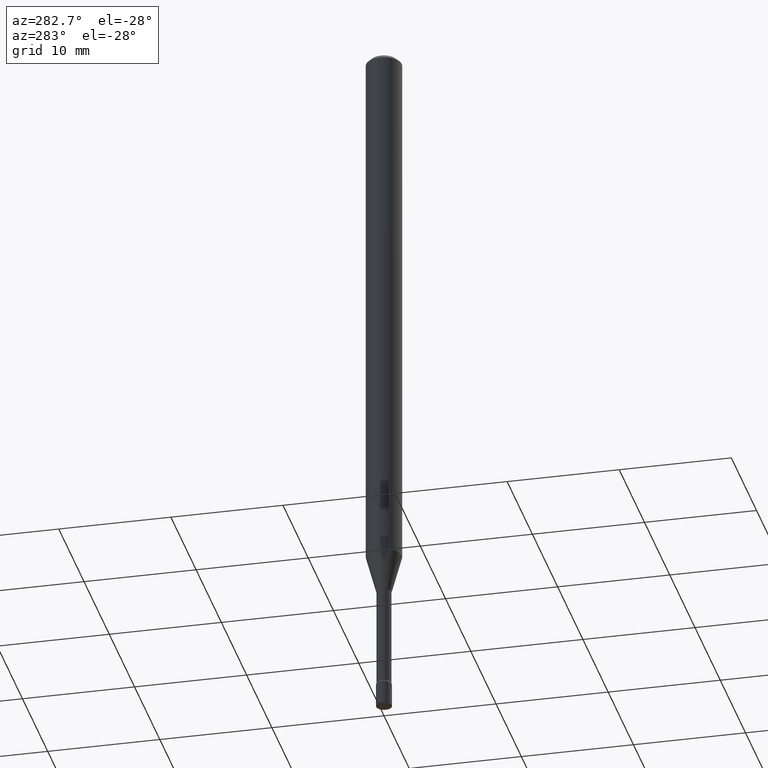
[diagram: clean part render]
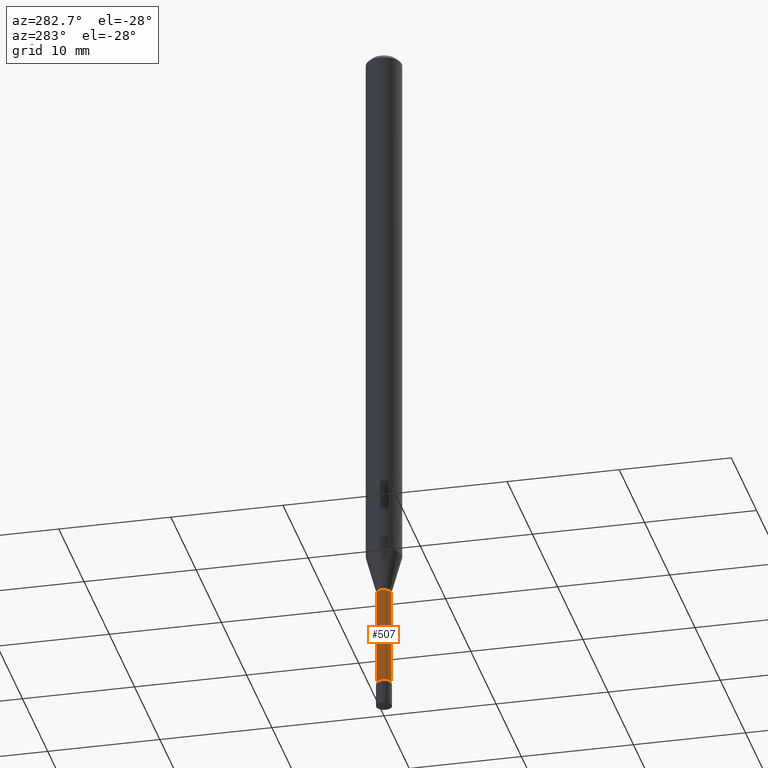
[diagram: same view with one face highlighted and labeled with its STEP entity id]
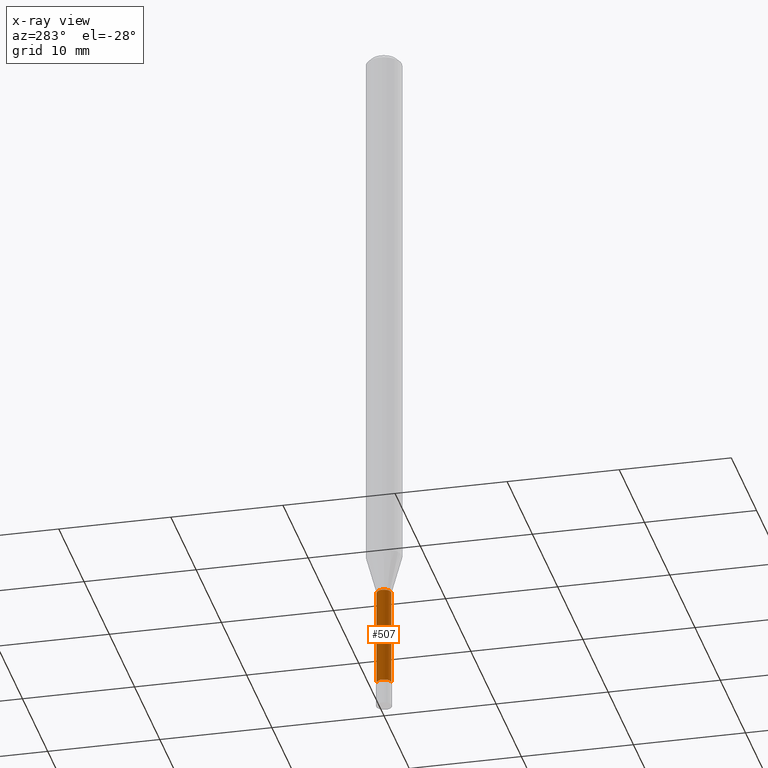
[diagram: x-ray of the same camera — body ghosted, the highlighted face saturated]
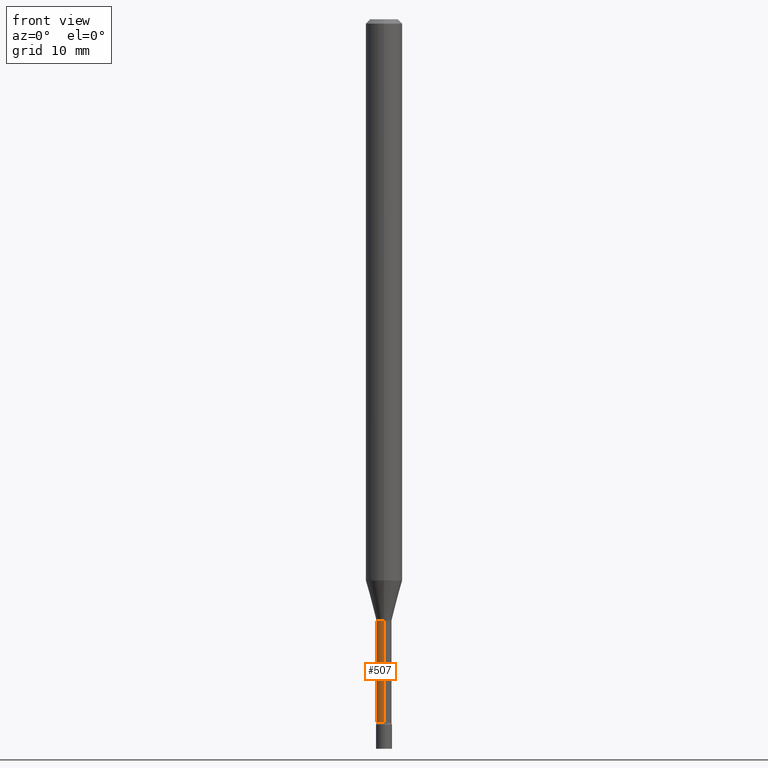
[diagram: same view with one face highlighted and labeled with its STEP entity id]
A machine part, auxiliary view. The second image highlights one B-rep face of the part: STEP entity #507.
The next image is the same camera in x-ray: the body ghosted, the highlighted face saturated — about 0% of this face is hidden behind the body in this view.
A second angle (front view) of the same face is appended — the face is thin or edge-on in the first view.
In plain terms, the highlighted cylindrical surface (edge-blend (fillet) strip) has radius 0.6566 mm, axis along (-0, 0, 1).
Its self-contained STEP definition (entity closure, byte-faithful):
#22 = VERTEX_POINT ( 'NONE', #192 ) ;
#26 = AXIS2_PLACEMENT_3D ( 'NONE', #399, #406, #243 ) ;
#35 = EDGE_CURVE ( 'NONE', #137, #108, #146, .T. ) ;
#38 = CARTESIAN_POINT ( 'NONE',  ( 0.000000000000000000, 0.000000000000000000, 0.000000000000000000 ) ) ;
#59 = CIRCLE ( 'NONE', #26, 0.02585000000000002227 ) ;
#99 = ORIENTED_EDGE ( 'NONE', *, *, #446, .F. ) ;
#105 = DIRECTION ( 'NONE',  ( -2.445418385667774846E-29, 3.491553543893765226E-15, 1.000000000000000000 ) ) ;
#108 = VERTEX_POINT ( 'NONE', #140 ) ;
#116 = CARTESIAN_POINT ( 'NONE',  ( -1.805095852181900511E-16, -0.02585000000000001186, 9.025665910965387354E-17 ) ) ;
#136 = CARTESIAN_POINT ( 'NONE',  ( -1.805095852181311823E-16, -0.02585000000000843567, -2.410160592130893509 ) ) ;
#137 = VERTEX_POINT ( 'NONE', #136 ) ;
#140 = CARTESIAN_POINT ( 'NONE',  ( -1.805095852181395393E-16, -0.02585000000000720402, -2.061974787463811243 ) ) ;
#144 = CARTESIAN_POINT ( 'NONE',  ( 1.836752971939859576E-16, 0.02585000000000001186, -9.025665910965387354E-17 ) ) ;
#146 = LINE ( 'NONE', #116, #150 ) ;
#150 = VECTOR ( 'NONE', #278, 39.37007874015748143 ) ;
#166 = AXIS2_PLACEMENT_3D ( 'NONE', #38, #440, #475 ) ;
#179 = VERTEX_POINT ( 'NONE', #365 ) ;
#192 = CARTESIAN_POINT ( 'NONE',  ( 1.836752971940449250E-16, 0.02584999999999280235, -2.061974787463811243 ) ) ;
#194 = AXIS2_PLACEMENT_3D ( 'NONE', #437, #478, #237 ) ;
#217 = VECTOR ( 'NONE', #105, 39.37007874015748143 ) ;
#237 = DIRECTION ( 'NONE',  ( -6.982962677686264344E-15, -1.000000000000000000, 0.000000000000000000 ) ) ;
#238 = EDGE_CURVE ( 'NONE', #179, #22, #303, .T. ) ;
#243 = DIRECTION ( 'NONE',  ( -6.982962677686265133E-15, -1.000000000000000000, 0.000000000000000000 ) ) ;
#275 = ORIENTED_EDGE ( 'NONE', *, *, #238, .F. ) ;
#278 = DIRECTION ( 'NONE',  ( -2.445418385667774846E-29, 3.491553543893765226E-15, 1.000000000000000000 ) ) ;
#291 = EDGE_LOOP ( 'NONE', ( #275, #506, #397, #99 ) ) ;
#303 = LINE ( 'NONE', #144, #217 ) ;
#365 = CARTESIAN_POINT ( 'NONE',  ( 1.895372747640659194E-16, 0.02584999999999160886, -2.410160592130893509 ) ) ;
#397 = ORIENTED_EDGE ( 'NONE', *, *, #35, .T. ) ;
#399 = CARTESIAN_POINT ( 'NONE',  ( 5.893851024408817213E-29, -8.415204756807717249E-15, -2.410160592130893509 ) ) ;
#406 = DIRECTION ( 'NONE',  ( -2.445418385667774846E-29, 3.491553543893765226E-15, 1.000000000000000000 ) ) ;
#437 = CARTESIAN_POINT ( 'NONE',  ( 5.042391056047406108E-29, -7.199495376588862482E-15, -2.061974787463811243 ) ) ;
#440 = DIRECTION ( 'NONE',  ( -2.445418385667774846E-29, 3.491553543893765226E-15, 1.000000000000000000 ) ) ;
#446 = EDGE_CURVE ( 'NONE', #22, #108, #450, .T. ) ;
#450 = CIRCLE ( 'NONE', #194, 0.02585000000000000492 ) ;
#475 = DIRECTION ( 'NONE',  ( -6.982962677686265922E-15, -1.000000000000000000, 3.491553543893765226E-15 ) ) ;
#478 = DIRECTION ( 'NONE',  ( -2.445418385667774846E-29, 3.491553543893765226E-15, 1.000000000000000000 ) ) ;
#483 = FACE_OUTER_BOUND ( 'NONE', #291, .T. ) ;
#488 = EDGE_CURVE ( 'NONE', #179, #137, #59, .T. ) ;
#506 = ORIENTED_EDGE ( 'NONE', *, *, #488, .T. ) ;
#507 = ADVANCED_FACE ( 'NONE', ( #483 ), #516, .T. ) ;
#516 = CYLINDRICAL_SURFACE ( 'NONE', #166, 0.02585000000000001186 ) ;